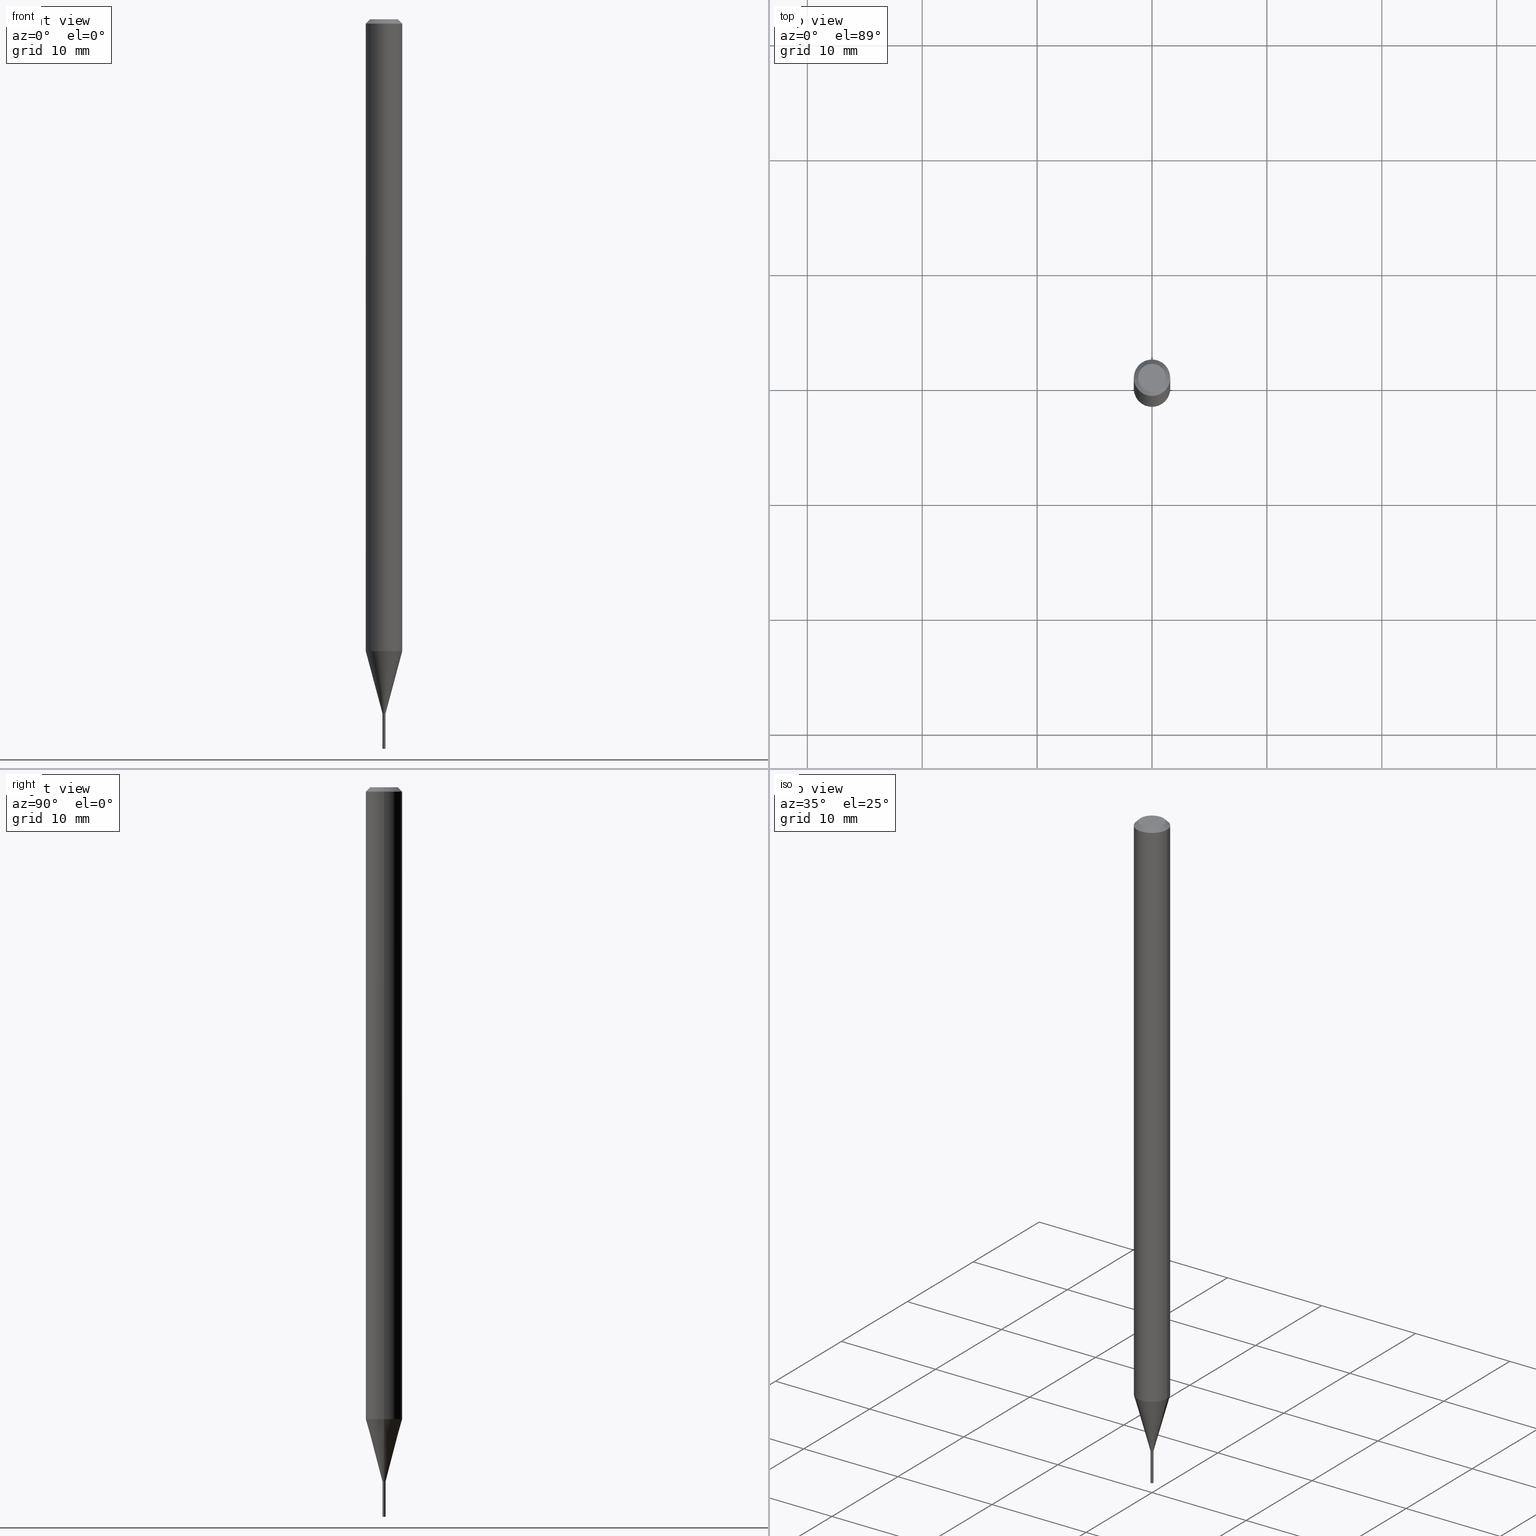
[diagram: canonical four-view strip — front | top / right | iso, engineering-drawing reading convention]
A machine part, canonical four-view strip (front | top / right | iso — engineering-drawing reading convention). The complete STEP part file that produces these views, byte-faithful:
ISO-10303-21;
HEADER;
FILE_DESCRIPTION (( 'STEP AP203' ),
    '1' );
FILE_NAME ('01283.STEP',
    '2024-03-20T00:59:35',
    ( '' ),
    ( '' ),
    'SwSTEP 2.0',
    'SolidWorks 2023',
    '' );
FILE_SCHEMA (( 'CONFIG_CONTROL_DESIGN' ));
ENDSEC;

DATA;
#1 = CARTESIAN_POINT ( 'NONE',  ( -0.004999999999999383410, -7.695293822808216788E-15, -2.379999999999999893 ) ) ;
#2 = CARTESIAN_POINT ( 'NONE',  ( -0.06250000000000000000, 4.440892098500626162E-16, -3.074334431409316114E-30 ) ) ;
#3 = DIRECTION ( 'NONE',  ( 1.000000000000000000, -6.982962677686267499E-15, 4.876176775795936353E-29 ) ) ;
#4 = VECTOR ( 'NONE', #151, 39.37007874015748143 ) ;
#5 = ADVANCED_FACE ( 'NONE', ( #88 ), #14, .F. ) ;
#6 = DIRECTION ( 'NONE',  ( 1.000000000000000000, -6.982962677686256455E-15, 0.000000000000000000 ) ) ;
#7 = DIRECTION ( 'NONE',  ( -2.445468806185136597E-29, 3.491481338843145583E-15, 1.000000000000000000 ) ) ;
#8 = ORIENTED_EDGE ( 'NONE', *, *, #440, .F. ) ;
#9 = ORIENTED_EDGE ( 'NONE', *, *, #336, .F. ) ;
#10 = CC_DESIGN_PERSON_AND_ORGANIZATION_ASSIGNMENT ( #366, #373, ( #131 ) ) ;
#11 = CONICAL_SURFACE ( 'NONE', #279, 0.06250000000000000000, 0.7853981633973539100 ) ;
#12 = DIRECTION ( 'NONE',  ( 0.000000000000000000, 0.000000000000000000, 1.000000000000000000 ) ) ;
#13 = APPROVAL_PERSON_ORGANIZATION ( #144, #19, #294 ) ;
#14 = CYLINDRICAL_SURFACE ( 'NONE', #194, 0.004999999999999788468 ) ;
#15 = CARTESIAN_POINT ( 'NONE',  ( 5.820215758720626311E-29, -8.309725586446688309E-15, -2.380000000000000338 ) ) ;
#16 = EDGE_LOOP ( 'NONE', ( #225, #374, #229, #247 ) ) ;
#17 = EDGE_CURVE ( 'NONE', #360, #304, #148, .T. ) ;
#18 = ORIENTED_EDGE ( 'NONE', *, *, #425, .F. ) ;
#19 = APPROVAL ( #258, 'UNSPECIFIED' ) ;
#20 = VERTEX_POINT ( 'NONE', #114 ) ;
#21 = AXIS2_PLACEMENT_3D ( 'NONE', #359, #174, #388 ) ;
#22 = PLANE ( 'NONE',  #27 ) ;
#23 = PERSON_AND_ORGANIZATION ( #115, #61 ) ;
#24 = DIRECTION ( 'NONE',  ( 1.000000000000000000, -6.982962677686266711E-15, 4.876176775795935793E-29 ) ) ;
#25 = DATE_AND_TIME ( #233, #163 ) ;
#26 = DIRECTION ( 'NONE',  ( -1.000000000000000000, 6.982962677686265922E-15, -4.876176775795935793E-29 ) ) ;
#27 = AXIS2_PLACEMENT_3D ( 'NONE', #351, #31, #90 ) ;
#28 = AXIS2_PLACEMENT_3D ( 'NONE', #320, #106, #66 ) ;
#29 = APPROVAL_ROLE ( '' ) ;
#30 = FACE_OUTER_BOUND ( 'NONE', #210, .T. ) ;
#31 = DIRECTION ( 'NONE',  ( -2.438088387897960049E-29, 3.491481338843145188E-15, 1.000000000000000000 ) ) ;
#32 = DIRECTION ( 'NONE',  ( 1.000000000000000000, -6.982962677686223323E-15, 0.000000000000000000 ) ) ;
#33 = AXIS2_PLACEMENT_3D ( 'NONE', #314, #162, #136 ) ;
#34 = VECTOR ( 'NONE', #325, 39.37007874015748143 ) ;
#35 = CARTESIAN_POINT ( 'NONE',  ( 0.06250000000000000000, -4.888073874380388472E-16, -0.01499999999999999944 ) ) ;
#36 = CARTESIAN_POINT ( 'NONE',  ( 0.06250000000000000000, -4.811533449433679005E-16, -0.01499999999999999944 ) ) ;
#37 = EDGE_CURVE ( 'NONE', #304, #360, #39, .T. ) ;
#38 = CYLINDRICAL_SURFACE ( 'NONE', #252, 0.004999999999999788468 ) ;
#39 = CIRCLE ( 'NONE', #435, 0.004999999999999997502 ) ;
#40 = CARTESIAN_POINT ( 'NONE',  ( 3.491481338848951944E-17, 0.004999999999991688177, -2.380000000000000338 ) ) ;
#41 = EDGE_LOOP ( 'NONE', ( #430, #111, #153, #47 ) ) ;
#42 = DIMENSIONAL_EXPONENTS ( 1.000000000000000000, 0.000000000000000000, 0.000000000000000000, 0.000000000000000000, 0.000000000000000000, 0.000000000000000000, 0.000000000000000000 ) ;
#43 = CARTESIAN_POINT ( 'NONE',  ( -0.004999999999999788468, 3.552713678800350627E-17, -2.459467545127348915E-31 ) ) ;
#44 = ADVANCED_FACE ( 'NONE', ( #77 ), #11, .T. ) ;
#45 = ORIENTED_EDGE ( 'NONE', *, *, #37, .T. ) ;
#46 = FACE_OUTER_BOUND ( 'NONE', #116, .T. ) ;
#47 = ORIENTED_EDGE ( 'NONE', *, *, #91, .F. ) ;
#48 = AXIS2_PLACEMENT_3D ( 'NONE', #97, #245, #312 ) ;
#49 = LENGTH_MEASURE_WITH_UNIT ( LENGTH_MEASURE( 0.02539999999999999897 ), #80 );
#50 = DIRECTION ( 'NONE',  ( -2.445468806185136597E-29, 3.491481338843145583E-15, 1.000000000000000000 ) ) ;
#51 = LINE ( 'NONE', #121, #319 ) ;
#52 = ORIENTED_EDGE ( 'NONE', *, *, #199, .F. ) ;
#53 = DIRECTION ( 'NONE',  ( 1.000000000000000000, -6.982962677686336130E-15, 0.000000000000000000 ) ) ;
#54 = APPROVAL_DATE_TIME ( #159, #273 ) ;
#55 = VECTOR ( 'NONE', #205, 39.37007874015748143 ) ;
#56 = CARTESIAN_POINT ( 'NONE',  ( -0.004999999999999997502, 3.552713678800499154E-17, -2.459467545127451822E-31 ) ) ;
#57 = CONICAL_SURFACE ( 'NONE', #84, 0.06250000000000000000, 0.7853981633973539100 ) ;
#58 = DIRECTION ( 'NONE',  ( 2.438088387897960049E-29, -3.491481338843145188E-15, -1.000000000000000000 ) ) ;
#59 = DIRECTION ( 'NONE',  ( -1.000000000000000000, 6.982962677686266711E-15, 0.000000000000000000 ) ) ;
#60 = CYLINDRICAL_SURFACE ( 'NONE', #100, 0.004999999999999997502 ) ;
#61 = ORGANIZATION ( 'UNSPECIFIED', 'UNSPECIFIED', '' ) ;
#62 = DIRECTION ( 'NONE',  ( 1.000000000000000000, -6.982962677686266711E-15, 4.876176775795935793E-29 ) ) ;
#63 = EDGE_CURVE ( 'NONE', #270, #184, #297, .T. ) ;
#64 = CARTESIAN_POINT ( 'NONE',  ( 5.818993024317533510E-29, -8.307979845777266016E-15, -2.379500000000000615 ) ) ;
#65 = ORIENTED_EDGE ( 'NONE', *, *, #127, .F. ) ;
#66 = DIRECTION ( 'NONE',  ( 1.000000000000000000, -6.982962677686267499E-15, 5.108144071313017768E-29 ) ) ;
#67 = CIRCLE ( 'NONE', #461, 0.005000000000000193526 ) ;
#68 = CARTESIAN_POINT ( 'NONE',  ( 0.004499999999999996191, -8.341148918496273795E-15, -2.379999999999999893 ) ) ;
#69 = ORIENTED_EDGE ( 'NONE', *, *, #303, .T. ) ;
#70 = ADVANCED_FACE ( 'NONE', ( #408 ), #226, .T. ) ;
#71 = DIRECTION ( 'NONE',  ( 1.000000000000000000, -6.982962677686231212E-15, 0.000000000000000000 ) ) ;
#72 = EDGE_LOOP ( 'NONE', ( #8, #449, #330, #458 ) ) ;
#73 = CARTESIAN_POINT ( 'NONE',  ( 5.295435463322675886E-29, -7.560478405807810558E-15, -2.165407078564788090 ) ) ;
#74 = EDGE_LOOP ( 'NONE', ( #286, #321, #329, #259 ) ) ;
#75 = CIRCLE ( 'NONE', #28, 0.04749999999999999362 ) ;
#76 = CALENDAR_DATE ( 2024, 19, 3 ) ;
#77 = FACE_OUTER_BOUND ( 'NONE', #447, .T. ) ;
#78 = DIRECTION ( 'NONE',  ( -2.445468806185136597E-29, 3.491481338843145583E-15, 1.000000000000000000 ) ) ;
#79 = VERTEX_POINT ( 'NONE', #242 ) ;
#80 =( LENGTH_UNIT ( ) NAMED_UNIT ( * ) SI_UNIT ( $, .METRE. ) );
#81 = EDGE_LOOP ( 'NONE', ( #69, #420, #18, #295 ) ) ;
#82 = VECTOR ( 'NONE', #285, 39.37007874015748143 ) ;
#83 = DIRECTION ( 'NONE',  ( 1.000000000000000000, 0.000000000000000000, 0.000000000000000000 ) ) ;
#84 = AXIS2_PLACEMENT_3D ( 'NONE', #235, #126, #59 ) ;
#85 = ORIENTED_EDGE ( 'NONE', *, *, #37, .F. ) ;
#86 = APPROVAL ( #340, 'UNSPECIFIED' ) ;
#87 = DIRECTION ( 'NONE',  ( 1.000000000000000000, -6.982962677686223323E-15, 0.000000000000000000 ) ) ;
#88 = FACE_OUTER_BOUND ( 'NONE', #41, .T. ) ;
#89 = PERSON_AND_ORGANIZATION ( #115, #61 ) ;
#90 = DIRECTION ( 'NONE',  ( 1.000000000000000000, -6.982962677686265922E-15, 4.876176775795935793E-29 ) ) ;
#91 = EDGE_CURVE ( 'NONE', #79, #94, #384, .T. ) ;
#92 = CARTESIAN_POINT ( 'NONE',  ( 3.316907271900976096E-16, 0.04749999999999999362, 1.250963203541518394E-15 ) ) ;
#93 = AXIS2_PLACEMENT_3D ( 'NONE', #211, #323, #71 ) ;
#94 = VERTEX_POINT ( 'NONE', #380 ) ;
#95 = DIRECTION ( 'NONE',  ( 1.000000000000000000, -6.982962677686336130E-15, 0.000000000000000000 ) ) ;
#96 = DATE_TIME_ROLE ( 'classification_date' ) ;
#97 = CARTESIAN_POINT ( 'NONE',  ( 5.820215758720625190E-29, -8.309725586446686731E-15, -2.379999999999999893 ) ) ;
#98 = ADVANCED_FACE ( 'NONE', ( #347 ), #134, .T. ) ;
#99 = PLANE ( 'NONE',  #318 ) ;
#100 = AXIS2_PLACEMENT_3D ( 'NONE', #427, #158, #387 ) ;
#101 = CIRCLE ( 'NONE', #93, 0.004499999999999996191 ) ;
#102 = EDGE_CURVE ( 'NONE', #292, #444, #305, .T. ) ;
#103 = CARTESIAN_POINT ( 'NONE',  ( 0.06250000000000000000, -4.364351673553916694E-16, 3.047610484872459871E-30 ) ) ;
#104 = MANIFOLD_SOLID_BREP ( 'Body-Move/Copy2[2]', #450 ) ;
#105 = DIRECTION ( 'NONE',  ( 0.2588190451025214611, 1.565188264969620982E-15, 0.9659258262890679791 ) ) ;
#106 = DIRECTION ( 'NONE',  ( -2.445468806185136597E-29, 3.491481338843145583E-15, 1.000000000000000000 ) ) ;
#107 = LINE ( 'NONE', #103, #34 ) ;
#108 = ORIENTED_EDGE ( 'NONE', *, *, #102, .T. ) ;
#109 = CARTESIAN_POINT ( 'NONE',  ( 0.004499999999999996191, -8.341148918496273795E-15, -2.379999999999999893 ) ) ;
#110 =( NAMED_UNIT ( * ) SI_UNIT ( $, .STERADIAN. ) SOLID_ANGLE_UNIT ( ) );
#111 = ORIENTED_EDGE ( 'NONE', *, *, #445, .T. ) ;
#112 = AXIS2_PLACEMENT_3D ( 'NONE', #249, #288, #138 ) ;
#113 = PERSON_AND_ORGANIZATION ( #115, #61 ) ;
#114 = CARTESIAN_POINT ( 'NONE',  ( 0.04749999999999999362, -4.035134999187529319E-16, 2.833617134273137848E-15 ) ) ;
#115 = PERSON ( 'UNSPECIFIED', 'UNSPECIFIED', 'UNSPECIFIED', ('UNSPECIFIED'), ('UNSPECIFIED'), ('UNSPECIFIED') ) ;
#116 = EDGE_LOOP ( 'NONE', ( #156, #152, #65, #451 ) ) ;
#117 =( CONVERSION_BASED_UNIT ( 'INCH', #49 ) LENGTH_UNIT ( ) NAMED_UNIT ( #42 ) );
#118 = ADVANCED_FACE ( 'NONE', ( #462 ), #60, .T. ) ;
#119 = ORIENTED_EDGE ( 'NONE', *, *, #367, .T. ) ;
#120 = PRODUCT_DEFINITION_FORMATION_WITH_SPECIFIED_SOURCE ( 'ANY', '', #131, .NOT_KNOWN. ) ;
#121 = CARTESIAN_POINT ( 'NONE',  ( -0.004999999999999383410, -8.274198449658685635E-15, -2.379999999999999893 ) ) ;
#122 = ORIENTED_EDGE ( 'NONE', *, *, #445, .F. ) ;
#123 = DIRECTION ( 'NONE',  ( 1.000000000000000000, -6.982962677686267499E-15, 4.876176775795936353E-29 ) ) ;
#124 = ADVANCED_FACE ( 'NONE', ( #30 ), #99, .F. ) ;
#125 = PERSON_AND_ORGANIZATION ( #115, #61 ) ;
#126 = DIRECTION ( 'NONE',  ( 2.445468806185136597E-29, -3.491481338843145583E-15, -1.000000000000000000 ) ) ;
#127 = EDGE_CURVE ( 'NONE', #94, #184, #362, .T. ) ;
#128 = CIRCLE ( 'NONE', #186, 0.004999999999999997502 ) ;
#129 = DIRECTION ( 'NONE',  ( -2.445468806185136597E-29, 3.491481338843145583E-15, 1.000000000000000000 ) ) ;
#130 = AXIS2_PLACEMENT_3D ( 'NONE', #370, #78, #190 ) ;
#131 = PRODUCT ( '01283', '01283', '', ( #188 ) ) ;
#132 = CARTESIAN_POINT ( 'NONE',  ( 5.818993024317533510E-29, -8.307979845777266016E-15, -2.379500000000000615 ) ) ;
#133 = COORDINATED_UNIVERSAL_TIME_OFFSET ( 5, 0, .BEHIND. ) ;
#134 = CYLINDRICAL_SURFACE ( 'NONE', #236, 0.06250000000000000000 ) ;
#135 = EDGE_CURVE ( 'NONE', #439, #368, #160, .T. ) ;
#136 = DIRECTION ( 'NONE',  ( 1.000000000000000000, -6.982962677686262766E-15, 0.000000000000000000 ) ) ;
#137 = CIRCLE ( 'NONE', #339, 0.06250000000000000000 ) ;
#138 = DIRECTION ( 'NONE',  ( 1.000000000000000000, -6.982962677686265922E-15, 4.876176775795935793E-29 ) ) ;
#139 = FACE_OUTER_BOUND ( 'NONE', #272, .T. ) ;
#140 = DIRECTION ( 'NONE',  ( -2.445468806185136597E-29, 3.491481338843145583E-15, 1.000000000000000000 ) ) ;
#141 = ORIENTED_EDGE ( 'NONE', *, *, #135, .T. ) ;
#142 = SECURITY_CLASSIFICATION ( '', '', #200 ) ;
#143 = DIRECTION ( 'NONE',  ( 0.7071067811864807373, -7.319954787623030431E-15, -0.7071067811866142971 ) ) ;
#144 = PERSON_AND_ORGANIZATION ( #115, #61 ) ;
#145 = EDGE_LOOP ( 'NONE', ( #309, #398 ) ) ;
#146 = APPROVAL_DATE_TIME ( #220, #19 ) ;
#147 = CARTESIAN_POINT ( 'NONE',  ( 0.000000000000000000, 0.000000000000000000, 0.000000000000000000 ) ) ;
#148 = CIRCLE ( 'NONE', #244, 0.004999999999999997502 ) ;
#149 = CONICAL_SURFACE ( 'NONE', #130, 0.004499999999999996191, 0.7853981633980192667 ) ;
#150 = CARTESIAN_POINT ( 'NONE',  ( 3.668203209277705088E-31, -5.237222008264718399E-17, -0.01499999999999999944 ) ) ;
#151 = DIRECTION ( 'NONE',  ( -2.445468806185136877E-29, 3.491481338843145188E-15, 1.000000000000000000 ) ) ;
#152 = ORIENTED_EDGE ( 'NONE', *, *, #63, .T. ) ;
#153 = ORIENTED_EDGE ( 'NONE', *, *, #248, .T. ) ;
#154 = CIRCLE ( 'NONE', #48, 0.004499999999999996191 ) ;
#155 =( GEOMETRIC_REPRESENTATION_CONTEXT ( 3 ) GLOBAL_UNCERTAINTY_ASSIGNED_CONTEXT ( ( #396 ) ) GLOBAL_UNIT_ASSIGNED_CONTEXT ( ( #117, #446, #110 ) ) REPRESENTATION_CONTEXT ( 'NONE', 'WORKASPACE' ) );
#156 = ORIENTED_EDGE ( 'NONE', *, *, #407, .T. ) ;
#157 = DATE_TIME_ROLE ( 'creation_date' ) ;
#158 = DIRECTION ( 'NONE',  ( -2.445468806185136597E-29, 3.491481338843145583E-15, 1.000000000000000000 ) ) ;
#159 = DATE_AND_TIME ( #423, #333 ) ;
#160 = LINE ( 'NONE', #166, #378 ) ;
#161 = COORDINATED_UNIVERSAL_TIME_OFFSET ( 5, 0, .BEHIND. ) ;
#162 = DIRECTION ( 'NONE',  ( -2.445468806185136597E-29, 3.491481338843145583E-15, 1.000000000000000000 ) ) ;
#163 = LOCAL_TIME ( 20, 59, 35.00000000000000000, #376 ) ;
#164 = CC_DESIGN_PERSON_AND_ORGANIZATION_ASSIGNMENT ( #89, #343, ( #142 ) ) ;
#165 = ADVANCED_FACE ( 'NONE', ( #316 ), #218, .T. ) ;
#166 = CARTESIAN_POINT ( 'NONE',  ( -0.06250000000000000000, 3.840629472727444916E-16, -0.01499999999999999944 ) ) ;
#167 = CARTESIAN_POINT ( 'NONE',  ( -0.005000000000000193526, -8.272452708989260187E-15, -2.379500000000000615 ) ) ;
#168 = CARTESIAN_POINT ( 'NONE',  ( 5.820215758720625190E-29, -8.309725586446686731E-15, -2.379999999999999893 ) ) ;
#169 = AXIS2_PLACEMENT_3D ( 'NONE', #463, #424, #418 ) ;
#170 = EDGE_CURVE ( 'NONE', #332, #335, #128, .T. ) ;
#171 = CIRCLE ( 'NONE', #280, 0.04749999999999999362 ) ;
#172 = DIRECTION ( 'NONE',  ( 2.438088387897960049E-29, -3.491481338843145188E-15, -1.000000000000000000 ) ) ;
#173 = EDGE_CURVE ( 'NONE', #270, #405, #154, .T. ) ;
#174 = DIRECTION ( 'NONE',  ( -2.445468806185136597E-29, 3.491481338843145583E-15, 1.000000000000000000 ) ) ;
#175 = EDGE_LOOP ( 'NONE', ( #453, #413, #189, #369 ) ) ;
#176 = CARTESIAN_POINT ( 'NONE',  ( -0.06250000000000000000, -3.362336103095166400E-15, -0.01499999999999999944 ) ) ;
#177 = LOCAL_TIME ( 20, 59, 35.00000000000000000, #404 ) ;
#178 = ADVANCED_FACE ( 'NONE', ( #208 ), #22, .F. ) ;
#179 = FACE_OUTER_BOUND ( 'NONE', #301, .T. ) ;
#180 = ORIENTED_EDGE ( 'NONE', *, *, #222, .T. ) ;
#181 = CARTESIAN_POINT ( 'NONE',  ( 0.06249999999999999306, -7.996913573163202227E-15, -2.165407078564788090 ) ) ;
#182 = ORIENTED_EDGE ( 'NONE', *, *, #199, .T. ) ;
#183 = CARTESIAN_POINT ( 'NONE',  ( 5.820215758720625190E-29, -8.309725586446686731E-15, -2.379999999999999893 ) ) ;
#184 = VERTEX_POINT ( 'NONE', #167 ) ;
#185 = PRODUCT_RELATED_PRODUCT_CATEGORY ( 'detail', '', ( #131 ) ) ;
#186 = AXIS2_PLACEMENT_3D ( 'NONE', #238, #278, #95 ) ;
#187 = APPROVAL_PERSON_ORGANIZATION ( #125, #86, #29 ) ;
#188 = MECHANICAL_CONTEXT ( 'NONE', #241, 'mechanical' ) ;
#189 = ORIENTED_EDGE ( 'NONE', *, *, #425, .T. ) ;
#190 = DIRECTION ( 'NONE',  ( 1.000000000000000000, -6.982962677686231212E-15, 0.000000000000000000 ) ) ;
#191 = ORIENTED_EDGE ( 'NONE', *, *, #367, .F. ) ;
#192 = APPLICATION_PROTOCOL_DEFINITION ( 'international standard', 'config_control_design', 1994, #206 ) ;
#193 = DIRECTION ( 'NONE',  ( -2.445468806185136597E-29, 3.491481338843145583E-15, 1.000000000000000000 ) ) ;
#194 = AXIS2_PLACEMENT_3D ( 'NONE', #147, #337, #123 ) ;
#195 = CIRCLE ( 'NONE', #466, 0.004999999999999383410 ) ;
#196 = PERSON_AND_ORGANIZATION_ROLE ( 'design_supplier' ) ;
#197 = ADVANCED_FACE ( 'NONE', ( #464 ), #57, .T. ) ;
#198 = DIRECTION ( 'NONE',  ( -2.445468806185136877E-29, 3.491481338843145188E-15, 1.000000000000000000 ) ) ;
#199 = EDGE_CURVE ( 'NONE', #304, #332, #377, .T. ) ;
#200 = SECURITY_CLASSIFICATION_LEVEL ( 'unclassified' ) ;
#201 = DIRECTION ( 'NONE',  ( -0.7071067811864807373, 2.468850131081557341E-15, -0.7071067811866142971 ) ) ;
#202 = ORIENTED_EDGE ( 'NONE', *, *, #345, .F. ) ;
#203 = ADVANCED_FACE ( 'NONE', ( #341 ), #308, .T. ) ;
#204 = DIRECTION ( 'NONE',  ( -2.445468806185136877E-29, 3.491481338843145188E-15, 1.000000000000000000 ) ) ;
#205 = DIRECTION ( 'NONE',  ( -2.445468806185136877E-29, 3.491481338843145188E-15, 1.000000000000000000 ) ) ;
#206 = APPLICATION_CONTEXT ( 'configuration controlled 3d designs of mechanical parts and assemblies' ) ;
#207 = EDGE_CURVE ( 'NONE', #368, #410, #443, .T. ) ;
#208 = FACE_OUTER_BOUND ( 'NONE', #357, .T. ) ;
#209 = CARTESIAN_POINT ( 'NONE',  ( -0.004999999999999997502, -8.483687329989272374E-15, -2.380000000000000338 ) ) ;
#210 = EDGE_LOOP ( 'NONE', ( #119, #266 ) ) ;
#211 = CARTESIAN_POINT ( 'NONE',  ( 5.820215758720625190E-29, -8.309725586446686731E-15, -2.379999999999999893 ) ) ;
#212 = CARTESIAN_POINT ( 'NONE',  ( 0.004999999999999997502, -8.344640399835119958E-15, -2.380000000000000338 ) ) ;
#213 = EDGE_LOOP ( 'NONE', ( #202, #108, #180, #327 ) ) ;
#214 = PLANE ( 'NONE',  #112 ) ;
#215 = ORIENTED_EDGE ( 'NONE', *, *, #407, .F. ) ;
#216 = EDGE_CURVE ( 'NONE', #360, #335, #239, .T. ) ;
#217 = FACE_OUTER_BOUND ( 'NONE', #145, .T. ) ;
#218 = CONICAL_SURFACE ( 'NONE', #169, 0.004999999999999383410, 0.2617993877991501850 ) ;
#219 = AXIS2_PLACEMENT_3D ( 'NONE', #460, #129, #275 ) ;
#220 = DATE_AND_TIME ( #76, #372 ) ;
#221 = DIRECTION ( 'NONE',  ( -1.000000000000000000, 6.982962677686266711E-15, 0.000000000000000000 ) ) ;
#222 = EDGE_CURVE ( 'NONE', #444, #410, #107, .T. ) ;
#223 = CARTESIAN_POINT ( 'NONE',  ( 6.113672015462842613E-29, -8.728703347107864943E-15, -2.500000000000000000 ) ) ;
#224 = DIRECTION ( 'NONE',  ( -2.445468806185136597E-29, 3.491481338843145583E-15, 1.000000000000000000 ) ) ;
#225 = ORIENTED_EDGE ( 'NONE', *, *, #455, .T. ) ;
#226 = CONICAL_SURFACE ( 'NONE', #441, 0.004999999999999383410, 0.2617993877991501850 ) ;
#227 = AXIS2_PLACEMENT_3D ( 'NONE', #168, #253, #32 ) ;
#228 = CARTESIAN_POINT ( 'NONE',  ( 0.000000000000000000, 0.000000000000000000, 0.000000000000000000 ) ) ;
#229 = ORIENTED_EDGE ( 'NONE', *, *, #303, .F. ) ;
#230 = ADVANCED_BREP_SHAPE_REPRESENTATION ( '01283', ( #419, #104, #428 ), #155 ) ;
#231 = CARTESIAN_POINT ( 'NONE',  ( -0.04749999999999999362, 3.578768372314260303E-16, 2.833617134273133115E-15 ) ) ;
#232 = ORIENTED_EDGE ( 'NONE', *, *, #170, .F. ) ;
#233 = CALENDAR_DATE ( 2024, 19, 3 ) ;
#234 = EDGE_CURVE ( 'NONE', #405, #94, #437, .T. ) ;
#235 = CARTESIAN_POINT ( 'NONE',  ( 3.668203209277705088E-31, -5.237222008264718399E-17, -0.01499999999999999944 ) ) ;
#236 = AXIS2_PLACEMENT_3D ( 'NONE', #415, #271, #62 ) ;
#237 = VECTOR ( 'NONE', #204, 39.37007874015748143 ) ;
#238 = CARTESIAN_POINT ( 'NONE',  ( 5.820215758720626311E-29, -8.309725586446688309E-15, -2.380000000000000338 ) ) ;
#239 = LINE ( 'NONE', #382, #237 ) ;
#240 = ORIENTED_EDGE ( 'NONE', *, *, #127, .T. ) ;
#241 = APPLICATION_CONTEXT ( 'configuration controlled 3d designs of mechanical parts and assemblies' ) ;
#242 = CARTESIAN_POINT ( 'NONE',  ( 0.004999999999999383410, -8.344640399835113647E-15, -2.379999999999999893 ) ) ;
#243 = SHAPE_DEFINITION_REPRESENTATION ( #342, #230 ) ;
#244 = AXIS2_PLACEMENT_3D ( 'NONE', #375, #193, #53 ) ;
#245 = DIRECTION ( 'NONE',  ( -2.445468806185136597E-29, 3.491481338843145583E-15, 1.000000000000000000 ) ) ;
#246 = FACE_OUTER_BOUND ( 'NONE', #74, .T. ) ;
#247 = ORIENTED_EDGE ( 'NONE', *, *, #390, .F. ) ;
#248 = EDGE_CURVE ( 'NONE', #184, #94, #67, .T. ) ;
#249 = CARTESIAN_POINT ( 'NONE',  ( 6.194428952736783458E-29, -8.613054816532157721E-15, -2.500000000000000000 ) ) ;
#250 = DIRECTION ( 'NONE',  ( 1.000000000000000000, -6.982962677686267499E-15, 5.108144071313017768E-29 ) ) ;
#251 = ORIENTED_EDGE ( 'NONE', *, *, #216, .F. ) ;
#252 = AXIS2_PLACEMENT_3D ( 'NONE', #354, #397, #3 ) ;
#253 = DIRECTION ( 'NONE',  ( -2.445468806185136597E-29, 3.491481338843145583E-15, 1.000000000000000000 ) ) ;
#254 = ORIENTED_EDGE ( 'NONE', *, *, #17, .T. ) ;
#255 = PRODUCT_DEFINITION ( 'UNKNOWN', '', #120, #361 ) ;
#256 = LINE ( 'NONE', #2, #353 ) ;
#257 = ORIENTED_EDGE ( 'NONE', *, *, #173, .F. ) ;
#258 = APPROVAL_STATUS ( 'not_yet_approved' ) ;
#259 = ORIENTED_EDGE ( 'NONE', *, *, #248, .F. ) ;
#260 = ADVANCED_FACE ( 'NONE', ( #246 ), #298, .T. ) ;
#261 = PERSON_AND_ORGANIZATION_ROLE ( 'creator' ) ;
#262 = DIRECTION ( 'NONE',  ( 1.000000000000000000, -6.982962677686336130E-15, 0.000000000000000000 ) ) ;
#263 = FACE_OUTER_BOUND ( 'NONE', #395, .T. ) ;
#264 = DIRECTION ( 'NONE',  ( -0.7071067811869512498, 7.493145998871813553E-15, 0.7071067811861437846 ) ) ;
#265 = DIRECTION ( 'NONE',  ( 1.000000000000000000, -6.982962677686336130E-15, 0.000000000000000000 ) ) ;
#266 = ORIENTED_EDGE ( 'NONE', *, *, #293, .T. ) ;
#267 = LINE ( 'NONE', #43, #4 ) ;
#268 = ORIENTED_EDGE ( 'NONE', *, *, #207, .T. ) ;
#269 = CALENDAR_DATE ( 2024, 19, 3 ) ;
#270 = VERTEX_POINT ( 'NONE', #281 ) ;
#271 = DIRECTION ( 'NONE',  ( -2.445468806185136597E-29, 3.491481338843145583E-15, 1.000000000000000000 ) ) ;
#272 = EDGE_LOOP ( 'NONE', ( #392, #85 ) ) ;
#273 = APPROVAL ( #276, 'UNSPECIFIED' ) ;
#274 = CC_DESIGN_APPROVAL ( #19, ( #255 ) ) ;
#275 = DIRECTION ( 'NONE',  ( 1.000000000000000000, -6.982962677686266711E-15, 0.000000000000000000 ) ) ;
#276 = APPROVAL_STATUS ( 'not_yet_approved' ) ;
#277 = CARTESIAN_POINT ( 'NONE',  ( 0.004999999999999788468, -3.491481338842986183E-17, 2.438088387897865076E-31 ) ) ;
#278 = DIRECTION ( 'NONE',  ( -2.445468806185136597E-29, 3.491481338843145583E-15, 1.000000000000000000 ) ) ;
#279 = AXIS2_PLACEMENT_3D ( 'NONE', #150, #307, #221 ) ;
#280 = AXIS2_PLACEMENT_3D ( 'NONE', #433, #399, #250 ) ;
#281 = CARTESIAN_POINT ( 'NONE',  ( -0.004499999999999996191, -8.275101936163370599E-15, -2.379999999999999893 ) ) ;
#282 = CC_DESIGN_PERSON_AND_ORGANIZATION_ASSIGNMENT ( #113, #261, ( #255 ) ) ;
#283 = ADVANCED_FACE ( 'NONE', ( #139 ), #214, .F. ) ;
#284 = CARTESIAN_POINT ( 'NONE',  ( -0.06249999999999999306, -7.116389195957747942E-15, -2.165407078564788090 ) ) ;
#285 = DIRECTION ( 'NONE',  ( 0.7071067811869512498, -2.468850131086485749E-15, 0.7071067811861437846 ) ) ;
#286 = ORIENTED_EDGE ( 'NONE', *, *, #63, .F. ) ;
#287 = VECTOR ( 'NONE', #198, 39.37007874015748143 ) ;
#288 = DIRECTION ( 'NONE',  ( -2.438088387897960049E-29, 3.491481338843145188E-15, 1.000000000000000000 ) ) ;
#289 = VECTOR ( 'NONE', #143, 39.37007874015748143 ) ;
#290 = VECTOR ( 'NONE', #105, 39.37007874015748143 ) ;
#291 = DIRECTION ( 'NONE',  ( 1.000000000000000000, -6.982962677686262766E-15, 0.000000000000000000 ) ) ;
#292 = VERTEX_POINT ( 'NONE', #284 ) ;
#293 = EDGE_CURVE ( 'NONE', #20, #439, #171, .T. ) ;
#294 = APPROVAL_ROLE ( '' ) ;
#295 = ORIENTED_EDGE ( 'NONE', *, *, #222, .F. ) ;
#296 = APPLICATION_PROTOCOL_DEFINITION ( 'international standard', 'config_control_design', 1994, #241 ) ;
#297 = LINE ( 'NONE', #299, #324 ) ;
#298 = CONICAL_SURFACE ( 'NONE', #21, 0.004499999999999996191, 0.7853981633980192667 ) ;
#299 = CARTESIAN_POINT ( 'NONE',  ( -0.004499999999999996191, -8.277751163337481011E-15, -2.379999999999999893 ) ) ;
#300 = CYLINDRICAL_SURFACE ( 'NONE', #379, 0.004999999999999997502 ) ;
#301 = EDGE_LOOP ( 'NONE', ( #122, #315, #389, #240 ) ) ;
#302 = DIRECTION ( 'NONE',  ( -2.445468806185136597E-29, 3.491481338843145583E-15, 1.000000000000000000 ) ) ;
#303 = EDGE_CURVE ( 'NONE', #444, #292, #313, .T. ) ;
#304 = VERTEX_POINT ( 'NONE', #391 ) ;
#305 = CIRCLE ( 'NONE', #33, 0.06250000000000000000 ) ;
#306 = CC_DESIGN_APPROVAL ( #86, ( #142 ) ) ;
#307 = DIRECTION ( 'NONE',  ( 2.445468806185136597E-29, -3.491481338843145583E-15, -1.000000000000000000 ) ) ;
#308 = CYLINDRICAL_SURFACE ( 'NONE', #349, 0.06250000000000000000 ) ;
#309 = ORIENTED_EDGE ( 'NONE', *, *, #432, .T. ) ;
#310 = CC_DESIGN_PERSON_AND_ORGANIZATION_ASSIGNMENT ( #381, #456, ( #120 ) ) ;
#311 = DATE_AND_TIME ( #426, #436 ) ;
#312 = DIRECTION ( 'NONE',  ( 1.000000000000000000, -6.982962677686231212E-15, 0.000000000000000000 ) ) ;
#313 = CIRCLE ( 'NONE', #326, 0.06250000000000000000 ) ;
#314 = CARTESIAN_POINT ( 'NONE',  ( 5.295435463322675886E-29, -7.560478405807810558E-15, -2.165407078564788090 ) ) ;
#315 = ORIENTED_EDGE ( 'NONE', *, *, #455, .F. ) ;
#316 = FACE_OUTER_BOUND ( 'NONE', #16, .T. ) ;
#317 = DIRECTION ( 'NONE',  ( -2.445468806185136597E-29, 3.491481338843145583E-15, 1.000000000000000000 ) ) ;
#318 = AXIS2_PLACEMENT_3D ( 'NONE', #92, #58, #26 ) ;
#319 = VECTOR ( 'NONE', #448, 39.37007874015748143 ) ;
#320 = CARTESIAN_POINT ( 'NONE',  ( -6.929522310536673502E-44, 9.893521345740843452E-30, 2.833617134273135482E-15 ) ) ;
#321 = ORIENTED_EDGE ( 'NONE', *, *, #173, .T. ) ;
#322 = DIRECTION ( 'NONE',  ( -1.000000000000000000, 6.982962677686265922E-15, -4.876176775795935793E-29 ) ) ;
#323 = DIRECTION ( 'NONE',  ( -2.445468806185136597E-29, 3.491481338843145583E-15, 1.000000000000000000 ) ) ;
#324 = VECTOR ( 'NONE', #264, 39.37007874015748143 ) ;
#325 = DIRECTION ( 'NONE',  ( -2.445468806185136877E-29, 3.491481338843145188E-15, 1.000000000000000000 ) ) ;
#326 = AXIS2_PLACEMENT_3D ( 'NONE', #73, #140, #291 ) ;
#327 = ORIENTED_EDGE ( 'NONE', *, *, #207, .F. ) ;
#328 = CARTESIAN_POINT ( 'NONE',  ( 3.668203209277705088E-31, -5.237222008264718399E-17, -0.01499999999999999944 ) ) ;
#329 = ORIENTED_EDGE ( 'NONE', *, *, #234, .T. ) ;
#330 = ORIENTED_EDGE ( 'NONE', *, *, #390, .T. ) ;
#331 = CC_DESIGN_DATE_AND_TIME_ASSIGNMENT ( #25, #96, ( #142 ) ) ;
#332 = VERTEX_POINT ( 'NONE', #209 ) ;
#333 = LOCAL_TIME ( 20, 59, 35.00000000000000000, #133 ) ;
#334 = CARTESIAN_POINT ( 'NONE',  ( 0.000000000000000000, 0.000000000000000000, 0.000000000000000000 ) ) ;
#335 = VERTEX_POINT ( 'NONE', #212 ) ;
#336 = EDGE_CURVE ( 'NONE', #20, #410, #438, .T. ) ;
#337 = DIRECTION ( 'NONE',  ( -2.445468806185136597E-29, 3.491481338843145583E-15, 1.000000000000000000 ) ) ;
#338 = DIRECTION ( 'NONE',  ( -2.445468806185136597E-29, 3.491481338843145583E-15, 1.000000000000000000 ) ) ;
#339 = AXIS2_PLACEMENT_3D ( 'NONE', #328, #7, #406 ) ;
#340 = APPROVAL_STATUS ( 'not_yet_approved' ) ;
#341 = FACE_OUTER_BOUND ( 'NONE', #213, .T. ) ;
#342 = PRODUCT_DEFINITION_SHAPE ( 'NONE', 'NONE',  #255 ) ;
#343 = PERSON_AND_ORGANIZATION_ROLE ( 'classification_officer' ) ;
#344 = DIRECTION ( 'NONE',  ( -2.445468806185136597E-29, 3.491481338843145583E-15, 1.000000000000000000 ) ) ;
#345 = EDGE_CURVE ( 'NONE', #292, #368, #256, .T. ) ;
#346 = APPROVAL_ROLE ( '' ) ;
#347 = FACE_OUTER_BOUND ( 'NONE', #81, .T. ) ;
#348 = CLOSED_SHELL ( 'NONE', ( #118, #283, #454, #416 ) ) ;
#349 = AXIS2_PLACEMENT_3D ( 'NONE', #457, #344, #24 ) ;
#350 = DIRECTION ( 'NONE',  ( 1.000000000000000000, -6.982962677686256455E-15, 0.000000000000000000 ) ) ;
#351 = CARTESIAN_POINT ( 'NONE',  ( 5.820215758720626311E-29, -8.309725586446688309E-15, -2.380000000000000338 ) ) ;
#352 = DIRECTION ( 'NONE',  ( -2.445468806185136877E-29, 3.491481338843145188E-15, 1.000000000000000000 ) ) ;
#353 = VECTOR ( 'NONE', #352, 39.37007874015748143 ) ;
#354 = CARTESIAN_POINT ( 'NONE',  ( 0.000000000000000000, 0.000000000000000000, 0.000000000000000000 ) ) ;
#355 = CC_DESIGN_PERSON_AND_ORGANIZATION_ASSIGNMENT ( #414, #196, ( #120 ) ) ;
#356 = CARTESIAN_POINT ( 'NONE',  ( 0.004999999999999383410, -8.344640399835113647E-15, -2.379999999999999893 ) ) ;
#357 = EDGE_LOOP ( 'NONE', ( #215, #257 ) ) ;
#358 = EDGE_CURVE ( 'NONE', #383, #79, #411, .T. ) ;
#359 = CARTESIAN_POINT ( 'NONE',  ( 5.820215758720625190E-29, -8.309725586446686731E-15, -2.379999999999999893 ) ) ;
#360 = VERTEX_POINT ( 'NONE', #394 ) ;
#361 = DESIGN_CONTEXT ( 'detailed design', #206, 'design' ) ;
#362 = CIRCLE ( 'NONE', #409, 0.005000000000000193526 ) ;
#363 = PLANE ( 'NONE',  #364 ) ;
#364 = AXIS2_PLACEMENT_3D ( 'NONE', #40, #172, #322 ) ;
#365 = ADVANCED_FACE ( 'NONE', ( #179 ), #38, .F. ) ;
#366 = PERSON_AND_ORGANIZATION ( #115, #61 ) ;
#367 = EDGE_CURVE ( 'NONE', #439, #20, #75, .T. ) ;
#368 = VERTEX_POINT ( 'NONE', #176 ) ;
#369 = ORIENTED_EDGE ( 'NONE', *, *, #135, .F. ) ;
#370 = CARTESIAN_POINT ( 'NONE',  ( 5.820215758720625190E-29, -8.309725586446686731E-15, -2.379999999999999893 ) ) ;
#371 = CARTESIAN_POINT ( 'NONE',  ( 5.820215758720625190E-29, -8.309725586446686731E-15, -2.379999999999999893 ) ) ;
#372 = LOCAL_TIME ( 20, 59, 35.00000000000000000, #401 ) ;
#373 = PERSON_AND_ORGANIZATION_ROLE ( 'design_owner' ) ;
#374 = ORIENTED_EDGE ( 'NONE', *, *, #440, .T. ) ;
#375 = CARTESIAN_POINT ( 'NONE',  ( 6.113672015462842613E-29, -8.728703347107864943E-15, -2.500000000000000000 ) ) ;
#376 = COORDINATED_UNIVERSAL_TIME_OFFSET ( 5, 0, .BEHIND. ) ;
#377 = LINE ( 'NONE', #56, #287 ) ;
#378 = VECTOR ( 'NONE', #201, 39.37007874015748143 ) ;
#379 = AXIS2_PLACEMENT_3D ( 'NONE', #334, #224, #442 ) ;
#380 = CARTESIAN_POINT ( 'NONE',  ( 0.005000000000000193526, -8.342894659165699243E-15, -2.379500000000000615 ) ) ;
#381 = PERSON_AND_ORGANIZATION ( #115, #61 ) ;
#382 = CARTESIAN_POINT ( 'NONE',  ( 0.004999999999999997502, -3.491481338843131630E-17, 2.438088387897967108E-31 ) ) ;
#383 = VERTEX_POINT ( 'NONE', #1 ) ;
#384 = LINE ( 'NONE', #277, #55 ) ;
#385 = AXIS2_PLACEMENT_3D ( 'NONE', #15, #302, #265 ) ;
#386 = CC_DESIGN_SECURITY_CLASSIFICATION ( #142, ( #120 ) ) ;
#387 = DIRECTION ( 'NONE',  ( 1.000000000000000000, -6.982962677686266711E-15, 4.876176775795936914E-29 ) ) ;
#388 = DIRECTION ( 'NONE',  ( 1.000000000000000000, -6.982962677686231212E-15, 0.000000000000000000 ) ) ;
#389 = ORIENTED_EDGE ( 'NONE', *, *, #91, .T. ) ;
#390 = EDGE_CURVE ( 'NONE', #79, #444, #431, .T. ) ;
#391 = CARTESIAN_POINT ( 'NONE',  ( -0.004999999999999997502, -8.483687329989272374E-15, -2.500000000000000000 ) ) ;
#392 = ORIENTED_EDGE ( 'NONE', *, *, #17, .F. ) ;
#393 = CC_DESIGN_APPROVAL ( #273, ( #120 ) ) ;
#394 = CARTESIAN_POINT ( 'NONE',  ( 0.004999999999999997502, -8.763618160496296592E-15, -2.500000000000000000 ) ) ;
#395 = EDGE_LOOP ( 'NONE', ( #52, #45, #465, #232 ) ) ;
#396 = UNCERTAINTY_MEASURE_WITH_UNIT (LENGTH_MEASURE( 1.000000000000000082E-05 ), #117, 'distance_accuracy_value', 'NONE');
#397 = DIRECTION ( 'NONE',  ( -2.445468806185136597E-29, 3.491481338843145583E-15, 1.000000000000000000 ) ) ;
#398 = ORIENTED_EDGE ( 'NONE', *, *, #170, .T. ) ;
#399 = DIRECTION ( 'NONE',  ( -2.445468806185136597E-29, 3.491481338843145583E-15, 1.000000000000000000 ) ) ;
#400 = CC_DESIGN_DATE_AND_TIME_ASSIGNMENT ( #417, #157, ( #255 ) ) ;
#401 = COORDINATED_UNIVERSAL_TIME_OFFSET ( 5, 0, .BEHIND. ) ;
#402 = CIRCLE ( 'NONE', #385, 0.004999999999999997502 ) ;
#403 = ORIENTED_EDGE ( 'NONE', *, *, #432, .F. ) ;
#404 = COORDINATED_UNIVERSAL_TIME_OFFSET ( 5, 0, .BEHIND. ) ;
#405 = VERTEX_POINT ( 'NONE', #109 ) ;
#406 = DIRECTION ( 'NONE',  ( 1.000000000000000000, -6.982962677686266711E-15, 0.000000000000000000 ) ) ;
#407 = EDGE_CURVE ( 'NONE', #405, #270, #101, .T. ) ;
#408 = FACE_OUTER_BOUND ( 'NONE', #72, .T. ) ;
#409 = AXIS2_PLACEMENT_3D ( 'NONE', #132, #317, #350 ) ;
#410 = VERTEX_POINT ( 'NONE', #35 ) ;
#411 = CIRCLE ( 'NONE', #227, 0.004999999999999383410 ) ;
#412 = DIRECTION ( 'NONE',  ( -2.445468806185136597E-29, 3.491481338843145583E-15, 1.000000000000000000 ) ) ;
#413 = ORIENTED_EDGE ( 'NONE', *, *, #336, .T. ) ;
#414 = PERSON_AND_ORGANIZATION ( #115, #61 ) ;
#415 = CARTESIAN_POINT ( 'NONE',  ( 0.000000000000000000, 0.000000000000000000, 0.000000000000000000 ) ) ;
#416 = ADVANCED_FACE ( 'NONE', ( #217 ), #363, .F. ) ;
#417 = DATE_AND_TIME ( #269, #177 ) ;
#418 = DIRECTION ( 'NONE',  ( 1.000000000000000000, -6.982962677686223323E-15, 0.000000000000000000 ) ) ;
#419 = MANIFOLD_SOLID_BREP ( 'Body-Move/Copy2[1]', #348 ) ;
#420 = ORIENTED_EDGE ( 'NONE', *, *, #345, .T. ) ;
#421 = APPROVAL_DATE_TIME ( #311, #86 ) ;
#422 = DIRECTION ( 'NONE',  ( 1.000000000000000000, -6.982962677686223323E-15, 0.000000000000000000 ) ) ;
#423 = CALENDAR_DATE ( 2024, 19, 3 ) ;
#424 = DIRECTION ( 'NONE',  ( -2.445468806185136597E-29, 3.491481338843145583E-15, 1.000000000000000000 ) ) ;
#425 = EDGE_CURVE ( 'NONE', #410, #368, #137, .T. ) ;
#426 = CALENDAR_DATE ( 2024, 19, 3 ) ;
#427 = CARTESIAN_POINT ( 'NONE',  ( 0.000000000000000000, 0.000000000000000000, 0.000000000000000000 ) ) ;
#428 = AXIS2_PLACEMENT_3D ( 'NONE', #228, #12, #83 ) ;
#429 = DIRECTION ( 'NONE',  ( -2.445468806185136597E-29, 3.491481338843145583E-15, 1.000000000000000000 ) ) ;
#430 = ORIENTED_EDGE ( 'NONE', *, *, #358, .F. ) ;
#431 = LINE ( 'NONE', #356, #290 ) ;
#432 = EDGE_CURVE ( 'NONE', #335, #332, #402, .T. ) ;
#433 = CARTESIAN_POINT ( 'NONE',  ( -6.929522310536673502E-44, 9.893521345740843452E-30, 2.833617134273135482E-15 ) ) ;
#434 = EDGE_LOOP ( 'NONE', ( #254, #182, #403, #251 ) ) ;
#435 = AXIS2_PLACEMENT_3D ( 'NONE', #223, #338, #262 ) ;
#436 = LOCAL_TIME ( 20, 59, 35.00000000000000000, #161 ) ;
#437 = LINE ( 'NONE', #68, #82 ) ;
#438 = LINE ( 'NONE', #36, #289 ) ;
#439 = VERTEX_POINT ( 'NONE', #231 ) ;
#440 = EDGE_CURVE ( 'NONE', #383, #292, #51, .T. ) ;
#441 = AXIS2_PLACEMENT_3D ( 'NONE', #371, #50, #422 ) ;
#442 = DIRECTION ( 'NONE',  ( 1.000000000000000000, -6.982962677686266711E-15, 4.876176775795936914E-29 ) ) ;
#443 = CIRCLE ( 'NONE', #219, 0.06250000000000000000 ) ;
#444 = VERTEX_POINT ( 'NONE', #181 ) ;
#445 = EDGE_CURVE ( 'NONE', #383, #184, #267, .T. ) ;
#446 =( NAMED_UNIT ( * ) PLANE_ANGLE_UNIT ( ) SI_UNIT ( $, .RADIAN. ) );
#447 = EDGE_LOOP ( 'NONE', ( #9, #191, #141, #268 ) ) ;
#448 = DIRECTION ( 'NONE',  ( -0.2588190451025214611, 5.211531920934550253E-15, 0.9659258262890679791 ) ) ;
#449 = ORIENTED_EDGE ( 'NONE', *, *, #358, .T. ) ;
#450 = CLOSED_SHELL ( 'NONE', ( #5, #459, #197, #98, #165, #70, #203, #44, #124, #178, #260, #365 ) ) ;
#451 = ORIENTED_EDGE ( 'NONE', *, *, #234, .F. ) ;
#452 = APPROVAL_PERSON_ORGANIZATION ( #23, #273, #346 ) ;
#453 = ORIENTED_EDGE ( 'NONE', *, *, #293, .F. ) ;
#454 = ADVANCED_FACE ( 'NONE', ( #263 ), #300, .T. ) ;
#455 = EDGE_CURVE ( 'NONE', #79, #383, #195, .T. ) ;
#456 = PERSON_AND_ORGANIZATION_ROLE ( 'creator' ) ;
#457 = CARTESIAN_POINT ( 'NONE',  ( 0.000000000000000000, 0.000000000000000000, 0.000000000000000000 ) ) ;
#458 = ORIENTED_EDGE ( 'NONE', *, *, #102, .F. ) ;
#459 = ADVANCED_FACE ( 'NONE', ( #46 ), #149, .T. ) ;
#460 = CARTESIAN_POINT ( 'NONE',  ( 3.668203209277705088E-31, -5.237222008264718399E-17, -0.01499999999999999944 ) ) ;
#461 = AXIS2_PLACEMENT_3D ( 'NONE', #64, #429, #6 ) ;
#462 = FACE_OUTER_BOUND ( 'NONE', #434, .T. ) ;
#463 = CARTESIAN_POINT ( 'NONE',  ( 5.820215758720625190E-29, -8.309725586446686731E-15, -2.379999999999999893 ) ) ;
#464 = FACE_OUTER_BOUND ( 'NONE', #175, .T. ) ;
#465 = ORIENTED_EDGE ( 'NONE', *, *, #216, .T. ) ;
#466 = AXIS2_PLACEMENT_3D ( 'NONE', #183, #412, #87 ) ;
ENDSEC;
END-ISO-10303-21;
